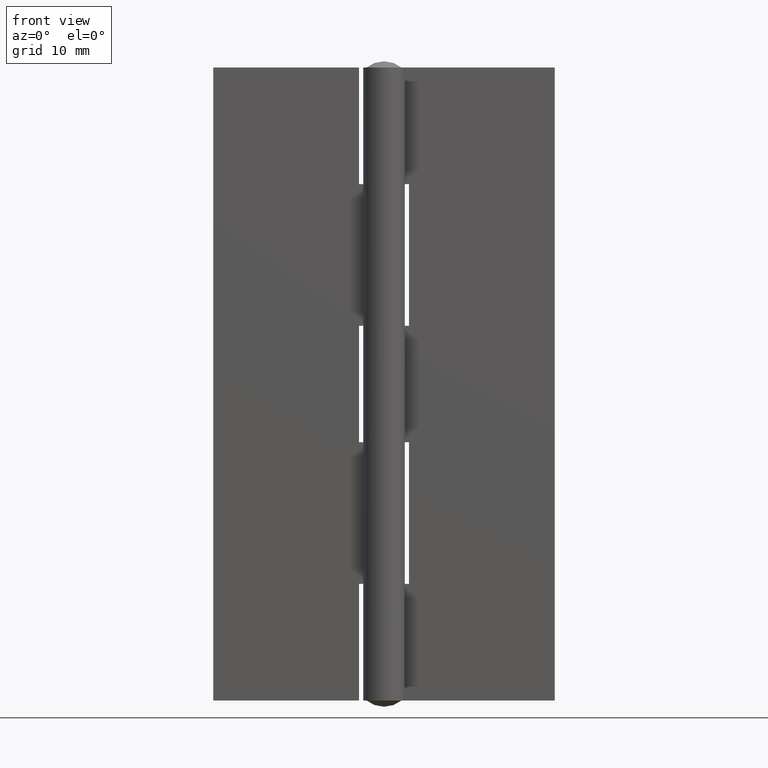
[diagram: clean part render]
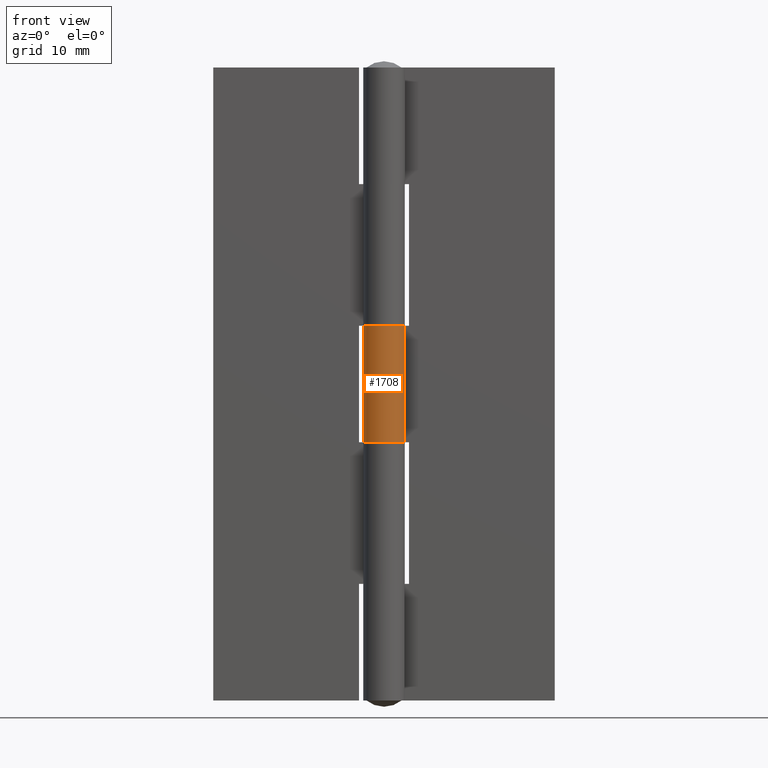
[diagram: same view with one face highlighted and labeled with its STEP entity id]
A machine part, front view. The second image highlights one B-rep face of the part: STEP entity #1708.
In plain terms, the highlighted face is a freeform B-spline surface patch.
Its self-contained STEP definition (entity closure, byte-faithful):
#1303=CARTESIAN_POINT('',(2.036541897432780,1.449999000000000,45.0));
#1304=VERTEX_POINT('',#1303);
#1313=CARTESIAN_POINT('',(2.862294E-014,2.499998999999975,45.0));
#1314=VERTEX_POINT('',#1313);
#1320=CARTESIAN_POINT('',(2.036541897432780,1.449999000000000,45.0));
#1321=CARTESIAN_POINT('',(2.187646399708124,1.238022797074483,45.000000000000043));
#1322=CARTESIAN_POINT('',(2.375524423079987,0.860649833558325,44.999999999999943));
#1323=CARTESIAN_POINT('',(2.519075306515544,0.196162436017634,45.000000000000128));
#1324=CARTESIAN_POINT('',(2.496883936923678,-0.400666686166952,44.999999999999723));
#1325=CARTESIAN_POINT('',(2.327898201485345,-0.951155379855028,45.000000000000362));
#1326=CARTESIAN_POINT('',(2.092493425724466,-1.397932552243597,44.999999999999588));
#1327=CARTESIAN_POINT('',(1.794926849632828,-1.763815812748830,45.000000000000057));
#1328=CARTESIAN_POINT('',(1.418903880970595,-2.074219718283367,45.000000000000533));
#1329=CARTESIAN_POINT('',(1.024087200363615,-2.296707954738098,44.999999999998693));
#1330=CARTESIAN_POINT('',(0.528664369304668,-2.464055830409197,45.000000000001151));
#1331=CARTESIAN_POINT('',(-0.097383479116284,-2.531454045615555,44.999999999999361));
#1332=CARTESIAN_POINT('',(-0.720202463164799,-2.421913935307074,44.999999999999872));
#1333=CARTESIAN_POINT('',(-1.228525917437931,-2.192317616151975,44.999999999999382));
#1334=CARTESIAN_POINT('',(-1.673848105249424,-1.887165360265430,45.000000000000057));
#1335=CARTESIAN_POINT('',(-2.076252168336290,-1.447098250815875,44.999999999999957));
#1336=CARTESIAN_POINT('',(-2.393138595221191,-0.823329148277243,45.000000000000050));
#1337=CARTESIAN_POINT('',(-2.518124920995563,-0.204431433930143,44.999999999999950));
#1338=CARTESIAN_POINT('',(-2.484569113581982,0.457781634469358,45.000000000000021));
#1339=CARTESIAN_POINT('',(-2.308097190503449,1.027330752494839,45.000000000000050));
#1340=CARTESIAN_POINT('',(-1.961297219462834,1.592487599488792,44.999999999999872));
#1341=CARTESIAN_POINT('',(-1.558602214035337,1.983415185475055,45.000000000000419));
#1342=CARTESIAN_POINT('',(-1.110808493033406,2.252578299706106,44.999999999999368));
#1343=CARTESIAN_POINT('',(-0.624670959455469,2.443878113642695,45.000000000001812));
#1344=CARTESIAN_POINT('',(-0.242960533628754,2.500115476851618,44.999999999995438));
#1345=CARTESIAN_POINT('',(2.862294E-014,2.499998999999975,45.0));
#1346=B_SPLINE_CURVE_WITH_KNOTS('',3,(#1320,#1321,#1322,#1323,#1324,#1325,#1326,#1327,#1328,#1329,#1330,#1331,#1332,#1333,#1334,#1335,#1336,#1337,#1338,#1339,#1340,#1341,#1342,#1343,#1344,#1345),.UNSPECIFIED.,.F.,.U.,(4,1,1,1,1,1,1,1,1,1,1,1,1,1,1,1,1,1,1,1,1,1,1,4),(0.000000088527562,0.780909498073337,1.249490072559262,2.030451442466125,2.551088815513115,2.967601724853003,3.540237552586115,3.956732447104885,4.425306738454154,4.893885895485035,5.518652200779391,6.299598300928762,6.768137768056415,7.184608843740274,7.913506486007653,8.538273634614345,9.267176354219387,9.787787904574490,10.516616379524550,11.037262631563699,11.766157340760220,12.182672872726730,12.599183890927650,13.328032608734359),.UNSPECIFIED.);
#1347=EDGE_CURVE('',#1304,#1314,#1346,.T.);
#1359=CARTESIAN_POINT('',(2.862294E-014,2.499998999999975,31.0));
#1360=VERTEX_POINT('',#1359);
#1373=CARTESIAN_POINT('',(2.036541897432780,1.449999000000000,31.0));
#1374=VERTEX_POINT('',#1373);
#1380=CARTESIAN_POINT('',(2.862294E-014,2.499998999999975,31.0));
#1381=CARTESIAN_POINT('',(-0.138818697152180,2.500001881378977,31.000000000000028));
#1382=CARTESIAN_POINT('',(-0.485908346526454,2.471058628291272,31.0));
#1383=CARTESIAN_POINT('',(-0.971701769039707,2.325291564165982,30.999999999999918));
#1384=CARTESIAN_POINT('',(-1.412786035846837,2.078371258024004,31.000000000000149));
#1385=CARTESIAN_POINT('',(-1.830174668360916,1.735962514640383,30.999999999999940));
#1386=CARTESIAN_POINT('',(-2.225275128287855,1.221166565841989,31.000000000000121));
#1387=CARTESIAN_POINT('',(-2.449686131026127,0.611183248772258,30.999999999999641));
#1388=CARTESIAN_POINT('',(-2.512410867200851,0.057479132377863,31.000000000000281));
#1389=CARTESIAN_POINT('',(-2.476931928310218,-0.499192652615979,30.999999999999801));
#1390=CARTESIAN_POINT('',(-2.303393459730476,-1.033834832383038,30.999999999999979));
#1391=CARTESIAN_POINT('',(-1.992137064586522,-1.537564959892651,31.000000000000139));
#1392=CARTESIAN_POINT('',(-1.610680936746103,-1.946151193845155,31.000000000000039));
#1393=CARTESIAN_POINT('',(-1.138807179566346,-2.248455718393321,31.000000000000149));
#1394=CARTESIAN_POINT('',(-0.664568463916232,-2.422058774884100,30.999999999999972));
#1395=CARTESIAN_POINT('',(-0.185251717978196,-2.511555993196351,31.000000000000021));
#1396=CARTESIAN_POINT('',(0.304327539933341,-2.499943753987691,30.999999999999989));
#1397=CARTESIAN_POINT('',(0.778856985686548,-2.387763365486181,31.000000000000011));
#1398=CARTESIAN_POINT('',(1.228260165342654,-2.198548129067409,30.999999999999989));
#1399=CARTESIAN_POINT('',(1.630530605945240,-1.919295733736476,31.0));
#1400=CARTESIAN_POINT('',(1.964879243324562,-1.564382059817313,31.000000000000011));
#1401=CARTESIAN_POINT('',(2.197097410897519,-1.216907642950894,31.0));
#1402=CARTESIAN_POINT('',(2.382751971055255,-0.803954203578828,31.0));
#1403=CARTESIAN_POINT('',(2.512922511391005,-0.260956411242567,31.000000000000011));
#1404=CARTESIAN_POINT('',(2.504579971443602,0.300217833241964,31.000000000000021));
#1405=CARTESIAN_POINT('',(2.353122665477176,0.908580576964772,30.999999999999179));
#1406=CARTESIAN_POINT('',(2.177554941161719,1.252147226908556,31.000000000002991));
#1407=CARTESIAN_POINT('',(2.036541897432780,1.449999000000000,31.0));
#1408=B_SPLINE_CURVE_WITH_KNOTS('',3,(#1380,#1381,#1382,#1383,#1384,#1385,#1386,#1387,#1388,#1389,#1390,#1391,#1392,#1393,#1394,#1395,#1396,#1397,#1398,#1399,#1400,#1401,#1402,#1403,#1404,#1405,#1406,#1407),.UNSPECIFIED.,.F.,.U.,(4,1,1,1,1,1,1,1,1,1,1,1,1,1,1,1,1,1,1,1,1,1,1,1,1,4),(0.000000087620576,0.416469669040021,1.041252710761810,1.509817615285467,1.926321757674447,2.655226106595627,3.436124330018014,3.852598511516201,4.321176797026068,5.102139981267554,5.518652200204757,6.091360242748136,6.768137768256001,7.184608843316715,7.601142365526825,8.225892804535693,8.642403217957641,9.058900246420620,9.683671939737868,10.100145301294351,10.516616378955369,10.933149899949640,11.453776511313549,12.182672872588810,12.599183891055061,13.328032608734251),.UNSPECIFIED.);
#1409=EDGE_CURVE('',#1360,#1374,#1408,.T.);
#1647=CARTESIAN_POINT('',(2.036541897432780,1.449999000000000,45.0));
#1648=CARTESIAN_POINT('',(2.036541897432780,1.449999000000000,31.0));
#1649=QUASI_UNIFORM_CURVE('',1,(#1647,#1648),.UNSPECIFIED.,.F.,.U.);
#1650=EDGE_CURVE('',#1304,#1374,#1649,.T.);
#1661=CARTESIAN_POINT('',(2.862294E-014,2.499998999999975,45.0));
#1662=CARTESIAN_POINT('',(2.862294E-014,2.499998999999975,31.0));
#1663=QUASI_UNIFORM_CURVE('',1,(#1661,#1662),.UNSPECIFIED.,.F.,.U.);
#1664=EDGE_CURVE('',#1314,#1360,#1663,.T.);
#1680=CARTESIAN_POINT('',(0.089406605648371,2.498400780272540,45.350000000000009));
#1681=CARTESIAN_POINT('',(0.089406605648371,2.498400780272540,30.641249999999999));
#1682=CARTESIAN_POINT('',(-3.108400566926125,2.612836017034922,45.350000000000009));
#1683=CARTESIAN_POINT('',(-3.108400566926125,2.612836017034922,30.641249999999989));
#1684=CARTESIAN_POINT('',(-2.445817015140611,-0.517667005369791,45.350000000000009));
#1685=CARTESIAN_POINT('',(-2.445817015140611,-0.517667005369791,30.641249999999999));
#1686=CARTESIAN_POINT('',(-1.783233463355097,-3.648170027774504,45.350000000000009));
#1687=CARTESIAN_POINT('',(-1.783233463355097,-3.648170027774504,30.641249999999989));
#1688=CARTESIAN_POINT('',(1.093986771537175,-2.247930813815613,45.350000000000009));
#1689=CARTESIAN_POINT('',(1.093986771537175,-2.247930813815613,30.641249999999999));
#1690=CARTESIAN_POINT('',(3.971207006429447,-0.847691599856722,45.350000000000009));
#1691=CARTESIAN_POINT('',(3.971207006429447,-0.847691599856722,30.641249999999989));
#1692=CARTESIAN_POINT('',(1.916498308078214,1.605314372680144,45.350000000000009));
#1693=CARTESIAN_POINT('',(1.916498308078214,1.605314372680144,30.641249999999999));
#1701=(BOUNDED_SURFACE()B_SPLINE_SURFACE(1,2,((#1680,#1682,#1684,#1686,#1688,#1690,#1692),(#1681,#1683,#1685,#1687,#1689,#1691,#1693)),.UNSPECIFIED.,.F.,.F.,.U.)B_SPLINE_SURFACE_WITH_KNOTS((2,2),(3,2,2,3),(0.0,14.708750000000020),(0.0,4.877325885658612,9.754651771317224,14.631977656975840),.UNSPECIFIED.)GEOMETRIC_REPRESENTATION_ITEM()RATIONAL_B_SPLINE_SURFACE(((1.0,0.615661475325658,1.0,0.615661475325658,1.0,0.615661475325658,1.0),(1.0,0.615661475325658,1.0,0.615661475325658,1.0,0.615661475325658,1.0)))REPRESENTATION_ITEM('')SURFACE());
#1702=ORIENTED_EDGE('',*,*,#1650,.F.);
#1703=ORIENTED_EDGE('',*,*,#1347,.T.);
#1704=ORIENTED_EDGE('',*,*,#1664,.T.);
#1705=ORIENTED_EDGE('',*,*,#1409,.T.);
#1706=EDGE_LOOP('',(#1702,#1703,#1704,#1705));
#1707=FACE_OUTER_BOUND('',#1706,.T.);
#1708=ADVANCED_FACE('',(#1707),#1701,.T.);